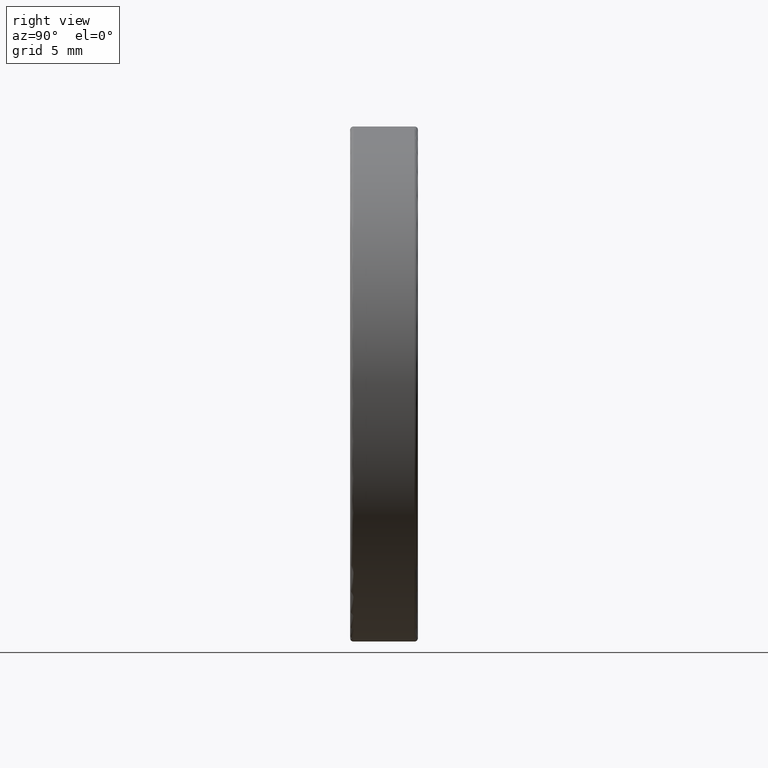
[diagram: clean part render]
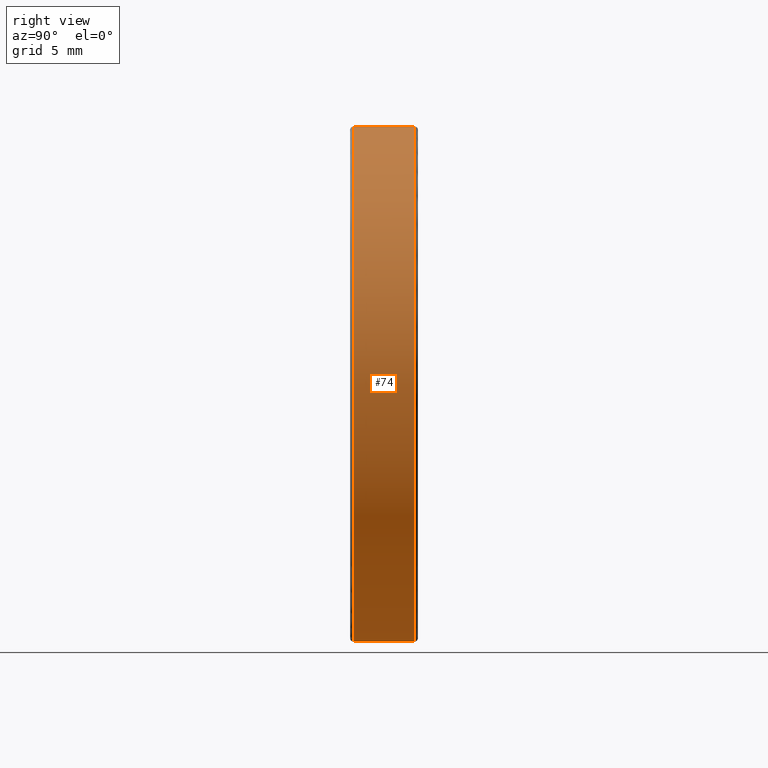
[diagram: same view with one face highlighted and labeled with its STEP entity id]
A machine part, right view. The second image highlights one B-rep face of the part: STEP entity #74.
In plain terms, the highlighted cylindrical surface (partial cylindrical patch) has radius 19 mm, axis along (-0, -1, -0).
Its self-contained STEP definition (entity closure, byte-faithful):
#18 = CARTESIAN_POINT ( 'NONE',  ( -7.546808913101048510, -5.143595127302727832, 38.00000000000000000 ) ) ;
#30 = AXIS2_PLACEMENT_3D ( 'NONE', #431, #140, #337 ) ;
#36 = ORIENTED_EDGE ( 'NONE', *, *, #576, .T. ) ;
#52 = ORIENTED_EDGE ( 'NONE', *, *, #518, .T. ) ;
#71 = EDGE_CURVE ( 'NONE', #184, #249, #155, .T. ) ;
#74 = ADVANCED_FACE ( 'NONE', ( #158 ), #250, .T. ) ;
#107 = DIRECTION ( 'NONE',  ( 0.000000000000000000, 1.000000000000000000, 0.000000000000000000 ) ) ;
#140 = DIRECTION ( 'NONE',  ( -0.000000000000000000, -1.000000000000000000, -0.000000000000000000 ) ) ;
#152 = DIRECTION ( 'NONE',  ( -0.000000000000000000, -1.000000000000000000, -0.000000000000000000 ) ) ;
#155 = CIRCLE ( 'NONE', #548, 18.99999999999999645 ) ;
#158 = FACE_OUTER_BOUND ( 'NONE', #244, .T. ) ;
#184 = VERTEX_POINT ( 'NONE', #347 ) ;
#192 = CARTESIAN_POINT ( 'NONE',  ( -7.546808913101044958, -0.6435951273027276098, 19.00000000000000000 ) ) ;
#197 = VECTOR ( 'NONE', #152, 1000.000000000000000 ) ;
#204 = CARTESIAN_POINT ( 'NONE',  ( -7.546808913101048510, -0.3935951273027278874, 19.00000000000000000 ) ) ;
#207 = EDGE_CURVE ( 'NONE', #469, #249, #480, .T. ) ;
#210 = DIRECTION ( 'NONE',  ( 0.000000000000000000, 0.000000000000000000, 1.000000000000000000 ) ) ;
#244 = EDGE_LOOP ( 'NONE', ( #36, #52, #389, #384 ) ) ;
#249 = VERTEX_POINT ( 'NONE', #554 ) ;
#250 = CYLINDRICAL_SURFACE ( 'NONE', #30, 19.00000000000000000 ) ;
#271 = VECTOR ( 'NONE', #404, 1000.000000000000000 ) ;
#289 = CARTESIAN_POINT ( 'NONE',  ( -7.546808913101045846, -0.3935951273027278874, 56.99999999999999289 ) ) ;
#337 = DIRECTION ( 'NONE',  ( 0.000000000000000000, 0.000000000000000000, -1.000000000000000000 ) ) ;
#347 = CARTESIAN_POINT ( 'NONE',  ( -7.546808913101045846, -5.143595127302727832, 56.99999999999999289 ) ) ;
#384 = ORIENTED_EDGE ( 'NONE', *, *, #207, .F. ) ;
#389 = ORIENTED_EDGE ( 'NONE', *, *, #71, .T. ) ;
#390 = CIRCLE ( 'NONE', #535, 18.99999999999999645 ) ;
#395 = LINE ( 'NONE', #289, #197 ) ;
#404 = DIRECTION ( 'NONE',  ( -0.000000000000000000, -1.000000000000000000, -0.000000000000000000 ) ) ;
#429 = CARTESIAN_POINT ( 'NONE',  ( -7.546808913101048510, -0.6435951273027276098, 56.99999999999999289 ) ) ;
#431 = CARTESIAN_POINT ( 'NONE',  ( -7.546808913101048510, -0.3935951273027278874, 38.00000000000000000 ) ) ;
#443 = DIRECTION ( 'NONE',  ( -0.000000000000000000, -1.000000000000000000, -0.000000000000000000 ) ) ;
#456 = CARTESIAN_POINT ( 'NONE',  ( -7.546808913101048510, -0.6435951273027276098, 38.00000000000000000 ) ) ;
#469 = VERTEX_POINT ( 'NONE', #192 ) ;
#480 = LINE ( 'NONE', #204, #271 ) ;
#496 = DIRECTION ( 'NONE',  ( 0.000000000000000000, 0.000000000000000000, 1.000000000000000000 ) ) ;
#500 = VERTEX_POINT ( 'NONE', #429 ) ;
#518 = EDGE_CURVE ( 'NONE', #500, #184, #395, .T. ) ;
#535 = AXIS2_PLACEMENT_3D ( 'NONE', #456, #443, #496 ) ;
#548 = AXIS2_PLACEMENT_3D ( 'NONE', #18, #107, #210 ) ;
#554 = CARTESIAN_POINT ( 'NONE',  ( -7.546808913101048510, -5.143595127302727832, 19.00000000000000000 ) ) ;
#576 = EDGE_CURVE ( 'NONE', #469, #500, #390, .T. ) ;